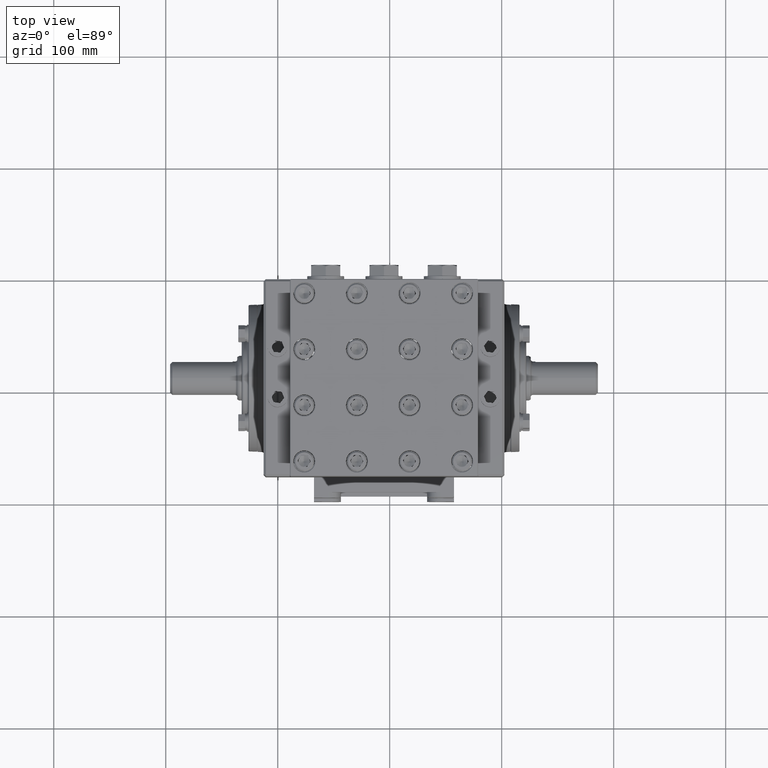
[diagram: clean part render]
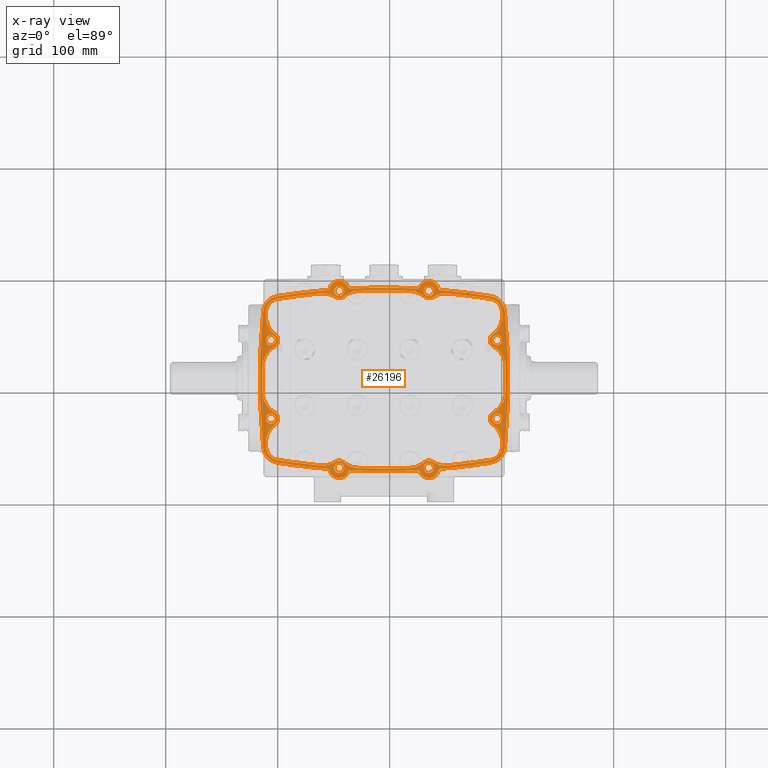
[diagram: x-ray — body ghosted, one internal face saturated and labeled with its STEP entity id]
A machine part, top view, then the same camera in x-ray: the body is ghosted and one INTERNAL B-rep face — a face not visible from any outside direction — is saturated and labeled: STEP entity #26196.
In plain terms, the highlighted planar face has unit normal (0, 0, 1).
Its self-contained STEP definition (entity closure, byte-faithful):
#60 = VERTEX_POINT ( 'NONE', #33132 ) ;
#239 = DIRECTION ( 'NONE',  ( 1.000000000000000000, 0.000000000000000000, 0.000000000000000000 ) ) ;
#281 = AXIS2_PLACEMENT_3D ( 'NONE', #66117, #52047, #17262 ) ;
#316 = CIRCLE ( 'NONE', #84127, 0.8070866141732255805 ) ;
#365 = CARTESIAN_POINT ( 'NONE',  ( 1.785424345714814232, 3.581782894422883334, -2.677165354331786151 ) ) ;
#388 = DIRECTION ( 'NONE',  ( -0.000000000000000000, -0.000000000000000000, -1.000000000000000000 ) ) ;
#419 = DIRECTION ( 'NONE',  ( 1.000000000000000000, 0.000000000000000000, 0.000000000000000000 ) ) ;
#507 = CARTESIAN_POINT ( 'NONE',  ( 2.031875159220263516, 3.460816034877502556, -2.677165354331786151 ) ) ;
#525 = AXIS2_PLACEMENT_3D ( 'NONE', #82290, #62318, #13040 ) ;
#612 = VERTEX_POINT ( 'NONE', #84361 ) ;
#622 = ORIENTED_EDGE ( 'NONE', *, *, #57316, .T. ) ;
#748 = EDGE_CURVE ( 'NONE', #10547, #16493, #12487, .T. ) ;
#881 = DIRECTION ( 'NONE',  ( 0.000000000000000000, 0.000000000000000000, 1.000000000000000000 ) ) ;
#892 = CARTESIAN_POINT ( 'NONE',  ( -1.775652658745459744, -2.673143141570590853, -2.677165354331786151 ) ) ;
#1003 = DIRECTION ( 'NONE',  ( -0.000000000000000000, -0.000000000000000000, -1.000000000000000000 ) ) ;
#1083 = DIRECTION ( 'NONE',  ( -0.000000000000000000, -0.000000000000000000, -1.000000000000000000 ) ) ;
#1476 = CARTESIAN_POINT ( 'NONE',  ( -0.2008495091391611642, -19.95660770849972465, -2.677165354331786151 ) ) ;
#1698 = DIRECTION ( 'NONE',  ( -0.000000000000000000, -0.000000000000000000, -1.000000000000000000 ) ) ;
#1706 = EDGE_CURVE ( 'NONE', #39356, #76186, #62009, .T. ) ;
#1744 = DIRECTION ( 'NONE',  ( -0.000000000000000000, 0.000000000000000000, 1.000000000000000000 ) ) ;
#1979 = DIRECTION ( 'NONE',  ( 0.000000000000000000, 0.000000000000000000, 1.000000000000000000 ) ) ;
#2002 = CARTESIAN_POINT ( 'NONE',  ( 3.153046066991902929, 2.676711634694780795, -2.677165354331786151 ) ) ;
#2188 = EDGE_CURVE ( 'NONE', #60603, #61202, #57726, .T. ) ;
#2222 = CARTESIAN_POINT ( 'NONE',  ( 3.952693797947452570, -0.9408596770036621315, -2.677165354331786151 ) ) ;
#2251 = ORIENTED_EDGE ( 'NONE', *, *, #62694, .F. ) ;
#2314 = CIRCLE ( 'NONE', #67392, 0.8070866141732228050 ) ;
#2584 = CARTESIAN_POINT ( 'NONE',  ( 3.153046066991902929, -1.802525476891080780, -2.677165354331786151 ) ) ;
#2598 = VERTEX_POINT ( 'NONE', #39488 ) ;
#2639 = CARTESIAN_POINT ( 'NONE',  ( -4.027370593448426739, 2.022483897743110770, -2.677165354331786151 ) ) ;
#2845 = ORIENTED_EDGE ( 'NONE', *, *, #34810, .T. ) ;
#2882 = CARTESIAN_POINT ( 'NONE',  ( 19.05111899479784654, 0.4370930789018498963, -2.677165354331786151 ) ) ;
#2928 = CARTESIAN_POINT ( 'NONE',  ( -2.433574177498585733, 3.460816034877502556, -2.677165354331786151 ) ) ;
#2952 = VERTEX_POINT ( 'NONE', #89502 ) ;
#3082 = CARTESIAN_POINT ( 'NONE',  ( -0.2008495091391611642, 20.83079386630342711, -2.677165354331786151 ) ) ;
#3208 = EDGE_CURVE ( 'NONE', #8627, #44251, #82527, .T. ) ;
#3267 = DIRECTION ( 'NONE',  ( 0.000000000000000000, 0.000000000000000000, 1.000000000000000000 ) ) ;
#3918 = CARTESIAN_POINT ( 'NONE',  ( -0.2008495091391611642, 20.83079386630342711, -2.677165354331786151 ) ) ;
#4266 = CARTESIAN_POINT ( 'NONE',  ( -1.775652658745459744, 3.547329299374291089, -2.677165354331786151 ) ) ;
#4549 = EDGE_LOOP ( 'NONE', ( #12685, #74538 ) ) ;
#4727 = DIRECTION ( 'NONE',  ( 1.000000000000000000, 0.000000000000000000, 0.000000000000000000 ) ) ;
#4912 = FACE_BOUND ( 'NONE', #61762, .T. ) ;
#4988 = ORIENTED_EDGE ( 'NONE', *, *, #87531, .T. ) ;
#5150 = DIRECTION ( 'NONE',  ( -1.000000000000000000, 0.000000000000000000, 0.000000000000000000 ) ) ;
#5289 = ORIENTED_EDGE ( 'NONE', *, *, #34220, .F. ) ;
#5559 = DIRECTION ( 'NONE',  ( -1.000000000000000000, 0.000000000000000000, 0.000000000000000000 ) ) ;
#5587 = CARTESIAN_POINT ( 'NONE',  ( 1.373953640467137305, -2.673143141570590853, -2.677165354331786151 ) ) ;
#5645 = ORIENTED_EDGE ( 'NONE', *, *, #45555, .T. ) ;
#5760 = VERTEX_POINT ( 'NONE', #34115 ) ;
#5784 = AXIS2_PLACEMENT_3D ( 'NONE', #45911, #18781, #73532 ) ;
#5807 = ORIENTED_EDGE ( 'NONE', *, *, #81953, .F. ) ;
#6211 = DIRECTION ( 'NONE',  ( 0.000000000000000000, 0.000000000000000000, 1.000000000000000000 ) ) ;
#6359 = EDGE_CURVE ( 'NONE', #60, #50495, #87274, .T. ) ;
#6781 = CARTESIAN_POINT ( 'NONE',  ( -0.2008495091391611642, -19.95660770849972465, -2.677165354331786151 ) ) ;
#6936 = CARTESIAN_POINT ( 'NONE',  ( 3.952693797947452570, 1.815045834807361924, -2.677165354331786151 ) ) ;
#7016 = ORIENTED_EDGE ( 'NONE', *, *, #6359, .F. ) ;
#7060 = CARTESIAN_POINT ( 'NONE',  ( -3.938871017554318232, -2.393934106790546412, -2.677165354331786151 ) ) ;
#7528 = AXIS2_PLACEMENT_3D ( 'NONE', #59001, #66265, #39571 ) ;
#7604 = DIRECTION ( 'NONE',  ( 0.000000000000000000, 0.000000000000000000, 1.000000000000000000 ) ) ;
#7808 = DIRECTION ( 'NONE',  ( -1.000000000000000000, 0.000000000000000000, 0.000000000000000000 ) ) ;
#7839 = EDGE_LOOP ( 'NONE', ( #42932, #18965 ) ) ;
#7881 = CIRCLE ( 'NONE', #68607, 0.4921259842519716821 ) ;
#7981 = CIRCLE ( 'NONE', #78766, 23.52362204724409267 ) ;
#8025 = EDGE_CURVE ( 'NONE', #59511, #69495, #27909, .T. ) ;
#8328 = AXIS2_PLACEMENT_3D ( 'NONE', #27906, #27028, #47799 ) ;
#8579 = CARTESIAN_POINT ( 'NONE',  ( -4.357899701633129119, 2.756282137976854063, -2.677165354331786151 ) ) ;
#8627 = VERTEX_POINT ( 'NONE', #33630 ) ;
#8652 = VERTEX_POINT ( 'NONE', #68005 ) ;
#8709 = EDGE_CURVE ( 'NONE', #18589, #57565, #53981, .T. ) ;
#8914 = DIRECTION ( 'NONE',  ( 1.000000000000000000, 0.000000000000000000, 0.000000000000000000 ) ) ;
#9077 = AXIS2_PLACEMENT_3D ( 'NONE', #71884, #16708, #9905 ) ;
#9384 = DIRECTION ( 'NONE',  ( -0.000000000000000000, -0.000000000000000000, -1.000000000000000000 ) ) ;
#9648 = DIRECTION ( 'NONE',  ( -1.000000000000000000, 0.000000000000000000, 0.000000000000000000 ) ) ;
#9723 = EDGE_CURVE ( 'NONE', #10505, #57132, #7881, .T. ) ;
#9831 = ORIENTED_EDGE ( 'NONE', *, *, #70588, .T. ) ;
#9834 = CIRCLE ( 'NONE', #50286, 0.3543307086614258528 ) ;
#9905 = DIRECTION ( 'NONE',  ( 1.000000000000000000, 0.000000000000000000, 0.000000000000000000 ) ) ;
#9950 = CARTESIAN_POINT ( 'NONE',  ( -0.2008495091391611642, 20.83079386630342711, -2.677165354331786151 ) ) ;
#9973 = CIRCLE ( 'NONE', #51849, 23.62204724409448531 ) ;
#9988 = DIRECTION ( 'NONE',  ( 0.000000000000000000, 0.000000000000000000, 1.000000000000000000 ) ) ;
#10087 = EDGE_CURVE ( 'NONE', #41835, #47770, #22426, .T. ) ;
#10196 = VERTEX_POINT ( 'NONE', #41651 ) ;
#10343 = FACE_BOUND ( 'NONE', #76847, .T. ) ;
#10505 = VERTEX_POINT ( 'NONE', #36190 ) ;
#10547 = VERTEX_POINT ( 'NONE', #24427 ) ;
#10602 = AXIS2_PLACEMENT_3D ( 'NONE', #31410, #30960, #51725 ) ;
#10762 = CIRCLE ( 'NONE', #61324, 0.5905511811023621549 ) ;
#10796 = DIRECTION ( 'NONE',  ( 0.000000000000000000, 0.000000000000000000, 1.000000000000000000 ) ) ;
#10843 = EDGE_CURVE ( 'NONE', #69093, #82409, #36941, .T. ) ;
#10875 = ORIENTED_EDGE ( 'NONE', *, *, #88723, .F. ) ;
#10966 = CARTESIAN_POINT ( 'NONE',  ( -4.000062107564357206, -0.9408596770036621315, -2.677165354331786151 ) ) ;
#10984 = EDGE_CURVE ( 'NONE', #80257, #21296, #34116, .T. ) ;
#11027 = CARTESIAN_POINT ( 'NONE',  ( -1.372456074976050600, 3.636366967388852345, -2.677165354331786151 ) ) ;
#11170 = AXIS2_PLACEMENT_3D ( 'NONE', #33255, #39606, #67195 ) ;
#11189 = CARTESIAN_POINT ( 'NONE',  ( -4.177227461895065552, 1.815045834807361924, -2.677165354331786151 ) ) ;
#11272 = ORIENTED_EDGE ( 'NONE', *, *, #9723, .F. ) ;
#11722 = DIRECTION ( 'NONE',  ( 0.000000000000000000, 0.000000000000000000, 1.000000000000000000 ) ) ;
#11731 = DIRECTION ( 'NONE',  ( -1.000000000000000000, 0.000000000000000000, 0.000000000000000000 ) ) ;
#11785 = CIRCLE ( 'NONE', #29082, 23.52362204724409267 ) ;
#11915 = ORIENTED_EDGE ( 'NONE', *, *, #77210, .T. ) ;
#11966 = VERTEX_POINT ( 'NONE', #7060 ) ;
#12051 = CARTESIAN_POINT ( 'NONE',  ( 0.7103715806316451831, -2.675172830413072411, -2.677165354331786151 ) ) ;
#12255 = DIRECTION ( 'NONE',  ( 1.000000000000000000, 0.000000000000000000, 0.000000000000000000 ) ) ;
#12320 = AXIS2_PLACEMENT_3D ( 'NONE', #68882, #28147, #34492 ) ;
#12476 = AXIS2_PLACEMENT_3D ( 'NONE', #19289, #67695, #46859 ) ;
#12487 = CIRCLE ( 'NONE', #38514, 0.07874015748031502893 ) ;
#12539 = CARTESIAN_POINT ( 'NONE',  ( 3.259284897187512797, -0.01164233930795106377, -2.677165354331786151 ) ) ;
#12570 = CIRCLE ( 'NONE', #84863, 0.1771653543307085410 ) ;
#12685 = ORIENTED_EDGE ( 'NONE', *, *, #85265, .T. ) ;
#12725 = CARTESIAN_POINT ( 'NONE',  ( -3.954511274911700625, 3.365294858623937291, -2.677165354331786151 ) ) ;
#12808 = ORIENTED_EDGE ( 'NONE', *, *, #68165, .T. ) ;
#12823 = DIRECTION ( 'NONE',  ( 1.000000000000000000, 0.000000000000000000, 0.000000000000000000 ) ) ;
#12892 = CARTESIAN_POINT ( 'NONE',  ( 3.598363089286034988, 1.815045834807361924, -2.677165354331786151 ) ) ;
#12897 = CARTESIAN_POINT ( 'NONE',  ( 1.047260817108147668, -2.810336619062198338, -2.677165354331786151 ) ) ;
#13040 = DIRECTION ( 'NONE',  ( -1.000000000000000000, 0.000000000000000000, 0.000000000000000000 ) ) ;
#13282 = CARTESIAN_POINT ( 'NONE',  ( -4.354392816225774787, 1.815045834807361924, -2.677165354331786151 ) ) ;
#13355 = AXIS2_PLACEMENT_3D ( 'NONE', #54034, #84350, #9648 ) ;
#13447 = CARTESIAN_POINT ( 'NONE',  ( -0.2008495091391611642, 20.83079386630342711, -2.677165354331786151 ) ) ;
#13570 = CARTESIAN_POINT ( 'NONE',  ( 3.537171999275996015, -2.393934106790546412, -2.677165354331786151 ) ) ;
#14004 = AXIS2_PLACEMENT_3D ( 'NONE', #41649, #40756, #33534 ) ;
#14133 = VERTEX_POINT ( 'NONE', #85594 ) ;
#14398 = CARTESIAN_POINT ( 'NONE',  ( 19.05111899479784654, 0.4370930789018498963, -2.677165354331786151 ) ) ;
#14402 = VERTEX_POINT ( 'NONE', #13570 ) ;
#14613 = AXIS2_PLACEMENT_3D ( 'NONE', #36544, #1698, #42449 ) ;
#14774 = ORIENTED_EDGE ( 'NONE', *, *, #39883, .T. ) ;
#14903 = ORIENTED_EDGE ( 'NONE', *, *, #78924, .F. ) ;
#15353 = CARTESIAN_POINT ( 'NONE',  ( 3.775528443616743779, 1.815045834807361924, -2.677165354331786151 ) ) ;
#15438 = DIRECTION ( 'NONE',  ( 1.000000000000000000, 0.000000000000000000, 0.000000000000000000 ) ) ;
#15461 = EDGE_CURVE ( 'NONE', #2952, #29906, #9973, .T. ) ;
#15555 = EDGE_CURVE ( 'NONE', #47770, #56272, #17277, .T. ) ;
#15765 = CIRCLE ( 'NONE', #21528, 0.8070866141732291332 ) ;
#16105 = VERTEX_POINT ( 'NONE', #65874 ) ;
#16181 = DIRECTION ( 'NONE',  ( -0.000000000000000000, -0.000000000000000000, -1.000000000000000000 ) ) ;
#16308 = CIRCLE ( 'NONE', #39452, 23.52362204724409267 ) ;
#16493 = VERTEX_POINT ( 'NONE', #39519 ) ;
#16521 = VERTEX_POINT ( 'NONE', #58506 ) ;
#16559 = DIRECTION ( 'NONE',  ( 1.000000000000000000, 0.000000000000000000, 0.000000000000000000 ) ) ;
#16612 = EDGE_CURVE ( 'NONE', #31982, #14133, #37620, .T. ) ;
#16708 = DIRECTION ( 'NONE',  ( 0.000000000000000000, 0.000000000000000000, 1.000000000000000000 ) ) ;
#16766 = DIRECTION ( 'NONE',  ( -1.000000000000000000, 0.000000000000000000, 0.000000000000000000 ) ) ;
#17023 = ORIENTED_EDGE ( 'NONE', *, *, #40165, .F. ) ;
#17262 = DIRECTION ( 'NONE',  ( 1.000000000000000000, 0.000000000000000000, 0.000000000000000000 ) ) ;
#17277 = CIRCLE ( 'NONE', #67846, 0.2559055118108424787 ) ;
#17384 = CARTESIAN_POINT ( 'NONE',  ( -4.354392816225774787, -0.9408596770036621315, -2.677165354331786151 ) ) ;
#17501 = DIRECTION ( 'NONE',  ( -0.000000000000000000, -0.000000000000000000, -1.000000000000000000 ) ) ;
#17740 = ORIENTED_EDGE ( 'NONE', *, *, #15461, .T. ) ;
#17769 = AXIS2_PLACEMENT_3D ( 'NONE', #81079, #67479, #52983 ) ;
#17770 = VERTEX_POINT ( 'NONE', #8579 ) ;
#17834 = VERTEX_POINT ( 'NONE', #59536 ) ;
#17980 = DIRECTION ( 'NONE',  ( 1.000000000000000000, 0.000000000000000000, 0.000000000000000000 ) ) ;
#17988 = DIRECTION ( 'NONE',  ( -0.000000000000000000, -0.000000000000000000, -1.000000000000000000 ) ) ;
#18041 = VERTEX_POINT ( 'NONE', #76285 ) ;
#18217 = ORIENTED_EDGE ( 'NONE', *, *, #16612, .T. ) ;
#18361 = EDGE_CURVE ( 'NONE', #21296, #60004, #23345, .T. ) ;
#18492 = FACE_BOUND ( 'NONE', #50610, .T. ) ;
#18589 = VERTEX_POINT ( 'NONE', #6936 ) ;
#18689 = CARTESIAN_POINT ( 'NONE',  ( 0.9746624119171848344, 3.715010216308480828, -2.677165354331786151 ) ) ;
#18781 = DIRECTION ( 'NONE',  ( 0.000000000000000000, 0.000000000000000000, 1.000000000000000000 ) ) ;
#18853 = CARTESIAN_POINT ( 'NONE',  ( -4.052946608125132855, 1.591345364621476799, -2.677165354331786151 ) ) ;
#18866 = AXIS2_PLACEMENT_3D ( 'NONE', #62561, #88892, #48082 ) ;
#18957 = ORIENTED_EDGE ( 'NONE', *, *, #28587, .T. ) ;
#18965 = ORIENTED_EDGE ( 'NONE', *, *, #71851, .F. ) ;
#19022 = EDGE_CURVE ( 'NONE', #87411, #23558, #57842, .T. ) ;
#19050 = EDGE_CURVE ( 'NONE', #56272, #26939, #85377, .T. ) ;
#19074 = AXIS2_PLACEMENT_3D ( 'NONE', #38355, #17988, #46450 ) ;
#19102 = VERTEX_POINT ( 'NONE', #84089 ) ;
#19260 = DIRECTION ( 'NONE',  ( 1.000000000000000000, 0.000000000000000000, 0.000000000000000000 ) ) ;
#19289 = CARTESIAN_POINT ( 'NONE',  ( -1.080806946457580242, 2.742878122471693381, -2.677165354331786151 ) ) ;
#19418 = CARTESIAN_POINT ( 'NONE',  ( -19.45281801307616831, 0.4370930789018498963, -2.677165354331786151 ) ) ;
#19506 = DIRECTION ( 'NONE',  ( 0.000000000000000000, 0.000000000000000000, 1.000000000000000000 ) ) ;
#19508 = CIRCLE ( 'NONE', #25271, 0.8070866141732273569 ) ;
#19611 = CARTESIAN_POINT ( 'NONE',  ( -4.177227461895065552, 1.815045834807361924, -2.677165354331786151 ) ) ;
#19688 = DIRECTION ( 'NONE',  ( -1.000000000000000000, 0.000000000000000000, 0.000000000000000000 ) ) ;
#19825 = EDGE_CURVE ( 'NONE', #70128, #83387, #84066, .T. ) ;
#20204 = VERTEX_POINT ( 'NONE', #72271 ) ;
#20328 = EDGE_CURVE ( 'NONE', #61361, #17834, #84130, .T. ) ;
#20437 = ORIENTED_EDGE ( 'NONE', *, *, #42046, .F. ) ;
#20499 = ORIENTED_EDGE ( 'NONE', *, *, #18361, .F. ) ;
#20984 = DIRECTION ( 'NONE',  ( -0.000000000000000000, 0.000000000000000000, 1.000000000000000000 ) ) ;
#21257 = DIRECTION ( 'NONE',  ( -1.000000000000000000, 0.000000000000000000, 0.000000000000000000 ) ) ;
#21296 = VERTEX_POINT ( 'NONE', #31773 ) ;
#21528 = AXIS2_PLACEMENT_3D ( 'NONE', #62337, #7604, #56413 ) ;
#21621 = CARTESIAN_POINT ( 'NONE',  ( 0.6791079281792580247, 2.742878122471693381, -2.677165354331786151 ) ) ;
#21650 = DIRECTION ( 'NONE',  ( -1.000000000000000000, 0.000000000000000000, 0.000000000000000000 ) ) ;
#21908 = DIRECTION ( 'NONE',  ( 1.000000000000000000, 0.000000000000000000, 0.000000000000000000 ) ) ;
#21915 = EDGE_CURVE ( 'NONE', #612, #41835, #78484, .T. ) ;
#22069 = CIRCLE ( 'NONE', #13355, 0.5905511811023621549 ) ;
#22413 = DIRECTION ( 'NONE',  ( -0.000000000000000000, -0.000000000000000000, -1.000000000000000000 ) ) ;
#22426 = CIRCLE ( 'NONE', #38311, 0.8070866141732285781 ) ;
#22476 = VERTEX_POINT ( 'NONE', #26891 ) ;
#22610 = EDGE_CURVE ( 'NONE', #76606, #76899, #84383, .T. ) ;
#22750 = CIRCLE ( 'NONE', #8328, 0.1771653543307088186 ) ;
#22785 = CIRCLE ( 'NONE', #55960, 23.52362204724408201 ) ;
#23001 = CIRCLE ( 'NONE', #80826, 0.5905511811023621549 ) ;
#23130 = DIRECTION ( 'NONE',  ( 1.000000000000000000, 0.000000000000000000, 0.000000000000000000 ) ) ;
#23328 = CARTESIAN_POINT ( 'NONE',  ( 3.651247589846810193, 1.591345364621476799, -2.677165354331786151 ) ) ;
#23345 = CIRCLE ( 'NONE', #66740, 0.2559055118111664417 ) ;
#23348 = DIRECTION ( 'NONE',  ( -0.000000000000000000, -0.000000000000000000, -1.000000000000000000 ) ) ;
#23406 = CARTESIAN_POINT ( 'NONE',  ( -0.2008495091391611642, -19.95660770849972465, -2.677165354331786151 ) ) ;
#23416 = CIRCLE ( 'NONE', #7528, 23.62204724409448531 ) ;
#23452 = VERTEX_POINT ( 'NONE', #87935 ) ;
#23501 = CARTESIAN_POINT ( 'NONE',  ( 1.551118994797845874, -2.673143141570590853, -2.677165354331786151 ) ) ;
#23558 = VERTEX_POINT ( 'NONE', #507 ) ;
#23724 = DIRECTION ( 'NONE',  ( 1.000000000000000000, 0.000000000000000000, 0.000000000000000000 ) ) ;
#23761 = AXIS2_PLACEMENT_3D ( 'NONE', #86054, #9988, #38496 ) ;
#23887 = ORIENTED_EDGE ( 'NONE', *, *, #68315, .F. ) ;
#24017 = VERTEX_POINT ( 'NONE', #42254 ) ;
#24302 = CARTESIAN_POINT ( 'NONE',  ( 1.373953640467137305, 3.547329299374291089, -2.677165354331786151 ) ) ;
#24368 = DIRECTION ( 'NONE',  ( 0.000000000000000000, 0.000000000000000000, 1.000000000000000000 ) ) ;
#24427 = CARTESIAN_POINT ( 'NONE',  ( 0.9707570566977284932, 3.636366967388852345, -2.677165354331786151 ) ) ;
#24521 = CARTESIAN_POINT ( 'NONE',  ( -3.860669730767379626, 2.782247294445845398, -2.677165354331786151 ) ) ;
#24621 = VERTEX_POINT ( 'NONE', #86963 ) ;
#24824 = DIRECTION ( 'NONE',  ( -0.000000000000000000, -0.000000000000000000, -1.000000000000000000 ) ) ;
#24844 = FACE_BOUND ( 'NONE', #7839, .T. ) ;
#24860 = CIRCLE ( 'NONE', #281, 0.07874015748031502893 ) ;
#24894 = AXIS2_PLACEMENT_3D ( 'NONE', #40027, #38231, #79411 ) ;
#25177 = CARTESIAN_POINT ( 'NONE',  ( -1.080806946457580242, -1.868691964667993366, -2.677165354331786151 ) ) ;
#25271 = AXIS2_PLACEMENT_3D ( 'NONE', #25177, #32848, #19260 ) ;
#25289 = FACE_BOUND ( 'NONE', #77318, .T. ) ;
#25420 = CARTESIAN_POINT ( 'NONE',  ( -2.356970234902155070, 2.657373044518958061, -2.677165354331786151 ) ) ;
#25558 = CARTESIAN_POINT ( 'NONE',  ( -19.45281801307616831, 0.4370930789018498963, -2.677165354331786151 ) ) ;
#25794 = CIRCLE ( 'NONE', #80704, 0.2559055118111683846 ) ;
#25832 = CARTESIAN_POINT ( 'NONE',  ( 3.458970712489064958, -1.908061136642145605, -2.677165354331786151 ) ) ;
#25834 = ORIENTED_EDGE ( 'NONE', *, *, #54292, .T. ) ;
#25844 = ORIENTED_EDGE ( 'NONE', *, *, #34496, .F. ) ;
#25849 = CIRCLE ( 'NONE', #37408, 0.8070866141732279120 ) ;
#26047 = VERTEX_POINT ( 'NONE', #71879 ) ;
#26107 = DIRECTION ( 'NONE',  ( -0.000000000000000000, -0.000000000000000000, -1.000000000000000000 ) ) ;
#26196 = ADVANCED_FACE ( 'NONE', ( #86865, #65537, #24844, #25289, #18492, #4912, #86419, #73239, #10343, #38414 ), #39300, .T. ) ;
#26338 = ORIENTED_EDGE ( 'NONE', *, *, #57166, .F. ) ;
#26348 = VERTEX_POINT ( 'NONE', #23501 ) ;
#26377 = DIRECTION ( 'NONE',  ( 0.000000000000000000, 0.000000000000000000, 1.000000000000000000 ) ) ;
#26891 = CARTESIAN_POINT ( 'NONE',  ( -4.467913048326146885, 0.9017714365801094978, -2.677165354331786151 ) ) ;
#26937 = AXIS2_PLACEMENT_3D ( 'NONE', #34916, #56124, #15438 ) ;
#26939 = VERTEX_POINT ( 'NONE', #74979 ) ;
#27028 = DIRECTION ( 'NONE',  ( 0.000000000000000000, 0.000000000000000000, 1.000000000000000000 ) ) ;
#27130 = ORIENTED_EDGE ( 'NONE', *, *, #21915, .T. ) ;
#27132 = VERTEX_POINT ( 'NONE', #72617 ) ;
#27138 = ORIENTED_EDGE ( 'NONE', *, *, #70898, .T. ) ;
#27162 = CARTESIAN_POINT ( 'NONE',  ( -3.554745085270225591, 2.676711634694780795, -2.677165354331786151 ) ) ;
#27170 = DIRECTION ( 'NONE',  ( 1.000000000000000000, 0.000000000000000000, 0.000000000000000000 ) ) ;
#27224 = ORIENTED_EDGE ( 'NONE', *, *, #64597, .F. ) ;
#27339 = ORIENTED_EDGE ( 'NONE', *, *, #2188, .F. ) ;
#27457 = ORIENTED_EDGE ( 'NONE', *, *, #10843, .T. ) ;
#27750 = EDGE_CURVE ( 'NONE', #55666, #22476, #51429, .T. ) ;
#27762 = ORIENTED_EDGE ( 'NONE', *, *, #44491, .T. ) ;
#27906 = CARTESIAN_POINT ( 'NONE',  ( -4.177227461895065552, -0.9408596770036621315, -2.677165354331786151 ) ) ;
#27909 = CIRCLE ( 'NONE', #43771, 0.07874015748031502893 ) ;
#28022 = AXIS2_PLACEMENT_3D ( 'NONE', #25420, #19506, #33528 ) ;
#28087 = AXIS2_PLACEMENT_3D ( 'NONE', #60553, #53312, #239 ) ;
#28092 = DIRECTION ( 'NONE',  ( -0.000000000000000000, -0.000000000000000000, -1.000000000000000000 ) ) ;
#28147 = DIRECTION ( 'NONE',  ( -0.000000000000000000, -0.000000000000000000, -1.000000000000000000 ) ) ;
#28382 = CARTESIAN_POINT ( 'NONE',  ( -1.608374987268675671, -2.479478969353215767, -2.677165354331786151 ) ) ;
#28587 = EDGE_CURVE ( 'NONE', #49261, #24017, #48687, .T. ) ;
#28593 = ORIENTED_EDGE ( 'NONE', *, *, #8709, .T. ) ;
#29082 = AXIS2_PLACEMENT_3D ( 'NONE', #13447, #6211, #41036 ) ;
#29422 = DIRECTION ( 'NONE',  ( 1.000000000000000000, 0.000000000000000000, 0.000000000000000000 ) ) ;
#29441 = AXIS2_PLACEMENT_3D ( 'NONE', #69344, #1003, #7808 ) ;
#29673 = ORIENTED_EDGE ( 'NONE', *, *, #31819, .T. ) ;
#29821 = CARTESIAN_POINT ( 'NONE',  ( -2.193744276842572116, -2.786058038628932643, -2.677165354331786151 ) ) ;
#29906 = VERTEX_POINT ( 'NONE', #12725 ) ;
#30321 = ORIENTED_EDGE ( 'NONE', *, *, #84594, .T. ) ;
#30482 = AXIS2_PLACEMENT_3D ( 'NONE', #1476, #3267, #37681 ) ;
#30484 = ORIENTED_EDGE ( 'NONE', *, *, #10087, .T. ) ;
#30568 = CARTESIAN_POINT ( 'NONE',  ( -1.372456074976128315, -2.762180809585147667, -2.677165354331786151 ) ) ;
#30645 = CIRCLE ( 'NONE', #39309, 23.52362204724408201 ) ;
#30648 = CARTESIAN_POINT ( 'NONE',  ( 3.259284897187512797, 0.8858284971116507922, -2.677165354331786151 ) ) ;
#30960 = DIRECTION ( 'NONE',  ( -0.000000000000000000, -0.000000000000000000, -1.000000000000000000 ) ) ;
#31111 = ORIENTED_EDGE ( 'NONE', *, *, #50196, .F. ) ;
#31355 = CIRCLE ( 'NONE', #14004, 0.3543307086614258528 ) ;
#31403 = DIRECTION ( 'NONE',  ( -0.000000000000000000, 0.000000000000000000, 1.000000000000000000 ) ) ;
#31410 = CARTESIAN_POINT ( 'NONE',  ( -1.775652658745459744, -2.673143141570590853, -2.677165354331786151 ) ) ;
#31600 = CIRCLE ( 'NONE', #53212, 0.1771653543307088186 ) ;
#31710 = EDGE_CURVE ( 'NONE', #26047, #35282, #45009, .T. ) ;
#31773 = CARTESIAN_POINT ( 'NONE',  ( -1.608374987268677669, 3.353665127156916892, -2.677165354331786151 ) ) ;
#31819 = EDGE_CURVE ( 'NONE', #36308, #65353, #316, .T. ) ;
#31982 = VERTEX_POINT ( 'NONE', #40567 ) ;
#32036 = CIRCLE ( 'NONE', #34883, 23.52362204724408201 ) ;
#32054 = AXIS2_PLACEMENT_3D ( 'NONE', #50087, #36998, #44654 ) ;
#32256 = EDGE_CURVE ( 'NONE', #22476, #19102, #52284, .T. ) ;
#32762 = CIRCLE ( 'NONE', #71739, 0.4921259842519656869 ) ;
#32820 = AXIS2_PLACEMENT_3D ( 'NONE', #71061, #49364, #85601 ) ;
#32848 = DIRECTION ( 'NONE',  ( 0.000000000000000000, 0.000000000000000000, 1.000000000000000000 ) ) ;
#32915 = DIRECTION ( 'NONE',  ( 1.000000000000000000, 0.000000000000000000, 0.000000000000000000 ) ) ;
#33132 = CARTESIAN_POINT ( 'NONE',  ( -1.915599482635094608, -2.458894413549770341, -2.677165354331786151 ) ) ;
#33237 = EDGE_CURVE ( 'NONE', #16493, #60603, #56792, .T. ) ;
#33255 = CARTESIAN_POINT ( 'NONE',  ( 0.6791079281792580247, -1.868691964667993366, -2.677165354331786151 ) ) ;
#33494 = CARTESIAN_POINT ( 'NONE',  ( -3.660983915465835015, -0.01164233930795106377, -2.677165354331786151 ) ) ;
#33528 = DIRECTION ( 'NONE',  ( 1.000000000000000000, 0.000000000000000000, 0.000000000000000000 ) ) ;
#33534 = DIRECTION ( 'NONE',  ( -1.000000000000000000, 0.000000000000000000, 0.000000000000000000 ) ) ;
#33630 = CARTESIAN_POINT ( 'NONE',  ( -1.952818013076168091, 3.547329299374291089, -2.677165354331786151 ) ) ;
#33695 = ORIENTED_EDGE ( 'NONE', *, *, #39162, .T. ) ;
#34115 = CARTESIAN_POINT ( 'NONE',  ( 3.537171999275987577, 3.268120264594258639, -2.677165354331786151 ) ) ;
#34116 = CIRCLE ( 'NONE', #12476, 0.8070866141732279120 ) ;
#34174 = EDGE_LOOP ( 'NONE', ( #34197, #77448, #4988, #18217, #622, #17740, #78527, #50477, #49552, #11915, #65991, #63927, #68560, #30321, #62961, #70690, #41027, #25844, #88124, #81680, #5289, #48360, #27339, #61208 ) ) ;
#34197 = ORIENTED_EDGE ( 'NONE', *, *, #748, .F. ) ;
#34220 = EDGE_CURVE ( 'NONE', #44231, #61361, #82968, .T. ) ;
#34492 = DIRECTION ( 'NONE',  ( -1.000000000000000000, 0.000000000000000000, 0.000000000000000000 ) ) ;
#34496 = EDGE_CURVE ( 'NONE', #16521, #26047, #39611, .T. ) ;
#34810 = EDGE_CURVE ( 'NONE', #82409, #69093, #64177, .T. ) ;
#34883 = AXIS2_PLACEMENT_3D ( 'NONE', #72944, #38571, #66601 ) ;
#34886 = DIRECTION ( 'NONE',  ( 1.000000000000000000, 0.000000000000000000, 0.000000000000000000 ) ) ;
#34901 = AXIS2_PLACEMENT_3D ( 'NONE', #37120, #77841, #29422 ) ;
#34916 = CARTESIAN_POINT ( 'NONE',  ( -3.660983915465835015, 0.8858284971116507922, -2.677165354331786151 ) ) ;
#35219 = DIRECTION ( 'NONE',  ( -1.000000000000000000, 0.000000000000000000, 0.000000000000000000 ) ) ;
#35282 = VERTEX_POINT ( 'NONE', #46223 ) ;
#35325 = CARTESIAN_POINT ( 'NONE',  ( -4.177227461895065552, 1.815045834807361924, -2.677165354331786151 ) ) ;
#35333 = VERTEX_POINT ( 'NONE', #10966 ) ;
#36190 = CARTESIAN_POINT ( 'NONE',  ( -3.938871017554309795, 3.268120264594258639, -2.677165354331786151 ) ) ;
#36221 = CIRCLE ( 'NONE', #30482, 23.52362204724409622 ) ;
#36308 = VERTEX_POINT ( 'NONE', #87425 ) ;
#36456 = EDGE_CURVE ( 'NONE', #17770, #50291, #54101, .T. ) ;
#36544 = CARTESIAN_POINT ( 'NONE',  ( 3.775528443616743779, 1.815045834807361924, -2.677165354331786151 ) ) ;
#36859 = CIRCLE ( 'NONE', #12320, 0.1771653543307086798 ) ;
#36915 = CARTESIAN_POINT ( 'NONE',  ( -2.193744276842649832, 3.660244196432625330, -2.677165354331786151 ) ) ;
#36941 = CIRCLE ( 'NONE', #87588, 0.1771653543307086798 ) ;
#36955 = ORIENTED_EDGE ( 'NONE', *, *, #69688, .T. ) ;
#36998 = DIRECTION ( 'NONE',  ( 0.000000000000000000, 0.000000000000000000, 1.000000000000000000 ) ) ;
#37080 = EDGE_CURVE ( 'NONE', #50495, #18041, #19508, .T. ) ;
#37120 = CARTESIAN_POINT ( 'NONE',  ( -1.775652658745459744, -2.673143141570590853, -2.677165354331786151 ) ) ;
#37377 = DIRECTION ( 'NONE',  ( 0.000000000000000000, 0.000000000000000000, 1.000000000000000000 ) ) ;
#37387 = CIRCLE ( 'NONE', #74994, 23.52362204724409267 ) ;
#37408 = AXIS2_PLACEMENT_3D ( 'NONE', #21621, #76821, #63209 ) ;
#37486 = AXIS2_PLACEMENT_3D ( 'NONE', #74545, #80447, #32915 ) ;
#37500 = DIRECTION ( 'NONE',  ( -1.000000000000000000, 0.000000000000000000, 0.000000000000000000 ) ) ;
#37561 = DIRECTION ( 'NONE',  ( -0.000000000000000000, -0.000000000000000000, -1.000000000000000000 ) ) ;
#37620 = CIRCLE ( 'NONE', #88247, 0.3543307086614990720 ) ;
#37678 = AXIS2_PLACEMENT_3D ( 'NONE', #30648, #9384, #50523 ) ;
#37681 = DIRECTION ( 'NONE',  ( 1.000000000000000000, 0.000000000000000000, 0.000000000000000000 ) ) ;
#38032 = VERTEX_POINT ( 'NONE', #13282 ) ;
#38078 = DIRECTION ( 'NONE',  ( 0.000000000000000000, 0.000000000000000000, 1.000000000000000000 ) ) ;
#38231 = DIRECTION ( 'NONE',  ( 0.000000000000000000, 0.000000000000000000, 1.000000000000000000 ) ) ;
#38311 = AXIS2_PLACEMENT_3D ( 'NONE', #2002, #22413, #77606 ) ;
#38355 = CARTESIAN_POINT ( 'NONE',  ( -19.45281801307616831, 0.4370930789018498963, -2.677165354331786151 ) ) ;
#38414 = FACE_BOUND ( 'NONE', #61819, .T. ) ;
#38496 = DIRECTION ( 'NONE',  ( -1.000000000000000000, 0.000000000000000000, 0.000000000000000000 ) ) ;
#38514 = AXIS2_PLACEMENT_3D ( 'NONE', #18689, #79337, #44924 ) ;
#38571 = DIRECTION ( 'NONE',  ( 0.000000000000000000, 0.000000000000000000, 1.000000000000000000 ) ) ;
#38626 = CIRCLE ( 'NONE', #11170, 0.8070866141732273569 ) ;
#38717 = AXIS2_PLACEMENT_3D ( 'NONE', #40015, #88908, #4727 ) ;
#38850 = VERTEX_POINT ( 'NONE', #47239 ) ;
#38910 = ORIENTED_EDGE ( 'NONE', *, *, #36456, .F. ) ;
#38966 = DIRECTION ( 'NONE',  ( -0.000000000000000000, -0.000000000000000000, -1.000000000000000000 ) ) ;
#39162 = EDGE_CURVE ( 'NONE', #38850, #14402, #32762, .T. ) ;
#39300 = PLANE ( 'NONE',  #52747 ) ;
#39309 = AXIS2_PLACEMENT_3D ( 'NONE', #25558, #45441, #53111 ) ;
#39356 = VERTEX_POINT ( 'NONE', #65166 ) ;
#39452 = AXIS2_PLACEMENT_3D ( 'NONE', #23406, #45084, #8914 ) ;
#39487 = AXIS2_PLACEMENT_3D ( 'NONE', #63668, #62799, #35219 ) ;
#39488 = CARTESIAN_POINT ( 'NONE',  ( 3.625671575170103189, -1.148297739939410089, -2.677165354331786151 ) ) ;
#39519 = CARTESIAN_POINT ( 'NONE',  ( 1.047260817108071507, 3.684522776865906124, -2.677165354331786151 ) ) ;
#39554 = DIRECTION ( 'NONE',  ( -0.000000000000000000, -0.000000000000000000, -1.000000000000000000 ) ) ;
#39571 = DIRECTION ( 'NONE',  ( -1.000000000000000000, 0.000000000000000000, 0.000000000000000000 ) ) ;
#39606 = DIRECTION ( 'NONE',  ( -0.000000000000000000, -0.000000000000000000, -1.000000000000000000 ) ) ;
#39611 = CIRCLE ( 'NONE', #42492, 23.62204724409448531 ) ;
#39654 = DIRECTION ( 'NONE',  ( -1.000000000000000000, 0.000000000000000000, 0.000000000000000000 ) ) ;
#39691 = ORIENTED_EDGE ( 'NONE', *, *, #87735, .F. ) ;
#39883 = EDGE_CURVE ( 'NONE', #23452, #42384, #38626, .T. ) ;
#39968 = CARTESIAN_POINT ( 'NONE',  ( -1.775652658745459744, 3.547329299374291089, -2.677165354331786151 ) ) ;
#40015 = CARTESIAN_POINT ( 'NONE',  ( 19.05111899479784654, 0.4370930789018498963, -2.677165354331786151 ) ) ;
#40027 = CARTESIAN_POINT ( 'NONE',  ( 19.05111899479784654, 0.4370930789018498963, -2.677165354331786151 ) ) ;
#40049 = ORIENTED_EDGE ( 'NONE', *, *, #32256, .F. ) ;
#40113 = CIRCLE ( 'NONE', #54551, 0.4921259842519656869 ) ;
#40165 = EDGE_CURVE ( 'NONE', #10196, #11966, #40113, .T. ) ;
#40481 = EDGE_CURVE ( 'NONE', #14402, #24621, #22785, .T. ) ;
#40561 = CIRCLE ( 'NONE', #18866, 0.4921259842519716821 ) ;
#40567 = CARTESIAN_POINT ( 'NONE',  ( -1.448959835386393724, 3.684522776865906124, -2.677165354331786151 ) ) ;
#40722 = CARTESIAN_POINT ( 'NONE',  ( -1.598487304414751176, 3.547329299374291089, -2.677165354331786151 ) ) ;
#40756 = DIRECTION ( 'NONE',  ( -0.000000000000000000, -0.000000000000000000, -1.000000000000000000 ) ) ;
#41027 = ORIENTED_EDGE ( 'NONE', *, *, #31710, .F. ) ;
#41036 = DIRECTION ( 'NONE',  ( 1.000000000000000000, 0.000000000000000000, 0.000000000000000000 ) ) ;
#41233 = CARTESIAN_POINT ( 'NONE',  ( 3.458970712489064958, 2.782247294445845398, -2.677165354331786151 ) ) ;
#41289 = CIRCLE ( 'NONE', #51384, 0.8070866141732258026 ) ;
#41432 = CARTESIAN_POINT ( 'NONE',  ( 1.551118994797845874, 3.547329299374291089, -2.677165354331786151 ) ) ;
#41576 = ORIENTED_EDGE ( 'NONE', *, *, #50907, .F. ) ;
#41649 = CARTESIAN_POINT ( 'NONE',  ( 1.373953640467137305, -2.673143141570590853, -2.677165354331786151 ) ) ;
#41651 = CARTESIAN_POINT ( 'NONE',  ( -4.350237865929031500, -1.958171269452897212, -2.677165354331786151 ) ) ;
#41835 = VERTEX_POINT ( 'NONE', #51051 ) ;
#41973 = DIRECTION ( 'NONE',  ( 0.000000000000000000, 0.000000000000000000, 1.000000000000000000 ) ) ;
#42046 = EDGE_CURVE ( 'NONE', #57132, #17770, #37387, .T. ) ;
#42051 = DIRECTION ( 'NONE',  ( 1.000000000000000000, 0.000000000000000000, 0.000000000000000000 ) ) ;
#42213 = CARTESIAN_POINT ( 'NONE',  ( 1.196788286136428514, -2.673143141570590853, -2.677165354331786151 ) ) ;
#42254 = CARTESIAN_POINT ( 'NONE',  ( 3.598363089286034988, -0.9408596770036621315, -2.677165354331786151 ) ) ;
#42384 = VERTEX_POINT ( 'NONE', #12051 ) ;
#42398 = CIRCLE ( 'NONE', #59695, 23.52362204724409267 ) ;
#42449 = DIRECTION ( 'NONE',  ( -1.000000000000000000, 0.000000000000000000, 0.000000000000000000 ) ) ;
#42492 = AXIS2_PLACEMENT_3D ( 'NONE', #9950, #37561, #65135 ) ;
#42930 = DIRECTION ( 'NONE',  ( -0.000000000000000000, 0.000000000000000000, 1.000000000000000000 ) ) ;
#42932 = ORIENTED_EDGE ( 'NONE', *, *, #80707, .F. ) ;
#43314 = DIRECTION ( 'NONE',  ( -0.000000000000000000, -0.000000000000000000, -1.000000000000000000 ) ) ;
#43328 = EDGE_CURVE ( 'NONE', #26939, #36308, #30645, .T. ) ;
#43398 = EDGE_CURVE ( 'NONE', #61202, #44231, #23416, .T. ) ;
#43771 = AXIS2_PLACEMENT_3D ( 'NONE', #29821, #71431, #70532 ) ;
#44032 = DIRECTION ( 'NONE',  ( 0.000000000000000000, 0.000000000000000000, 1.000000000000000000 ) ) ;
#44231 = VERTEX_POINT ( 'NONE', #65643 ) ;
#44251 = VERTEX_POINT ( 'NONE', #40722 ) ;
#44491 = EDGE_CURVE ( 'NONE', #65353, #2598, #52378, .T. ) ;
#44654 = DIRECTION ( 'NONE',  ( -1.000000000000000000, 0.000000000000000000, 0.000000000000000000 ) ) ;
#44656 = VERTEX_POINT ( 'NONE', #57822 ) ;
#44713 = ORIENTED_EDGE ( 'NONE', *, *, #19022, .T. ) ;
#44804 = ORIENTED_EDGE ( 'NONE', *, *, #77547, .T. ) ;
#44924 = DIRECTION ( 'NONE',  ( -1.000000000000000000, 0.000000000000000000, 0.000000000000000000 ) ) ;
#45009 = CIRCLE ( 'NONE', #32054, 0.07874015748031502893 ) ;
#45036 = AXIS2_PLACEMENT_3D ( 'NONE', #892, #82391, #27170 ) ;
#45084 = DIRECTION ( 'NONE',  ( 0.000000000000000000, 0.000000000000000000, 1.000000000000000000 ) ) ;
#45199 = DIRECTION ( 'NONE',  ( 1.000000000000000000, 0.000000000000000000, 0.000000000000000000 ) ) ;
#45432 = CIRCLE ( 'NONE', #74323, 0.2559055118108424787 ) ;
#45441 = DIRECTION ( 'NONE',  ( -0.000000000000000000, -0.000000000000000000, -1.000000000000000000 ) ) ;
#45555 = EDGE_CURVE ( 'NONE', #24017, #49261, #55429, .T. ) ;
#45911 = CARTESIAN_POINT ( 'NONE',  ( 1.792045258564327614, 3.660244196432625330, -2.677165354331786151 ) ) ;
#46100 = DIRECTION ( 'NONE',  ( -0.000000000000000000, -0.000000000000000000, -1.000000000000000000 ) ) ;
#46171 = AXIS2_PLACEMENT_3D ( 'NONE', #35325, #28092, #34886 ) ;
#46223 = CARTESIAN_POINT ( 'NONE',  ( 1.716028600728412457, -2.765528057345597812, -2.677165354331786151 ) ) ;
#46324 = ORIENTED_EDGE ( 'NONE', *, *, #69585, .T. ) ;
#46450 = DIRECTION ( 'NONE',  ( -1.000000000000000000, 0.000000000000000000, 0.000000000000000000 ) ) ;
#46596 = EDGE_CURVE ( 'NONE', #26348, #78661, #82988, .T. ) ;
#46659 = CIRCLE ( 'NONE', #9077, 0.1771653543307088186 ) ;
#46859 = DIRECTION ( 'NONE',  ( 1.000000000000000000, 0.000000000000000000, 0.000000000000000000 ) ) ;
#47239 = CARTESIAN_POINT ( 'NONE',  ( 3.948538847650708838, -1.958171269452897212, -2.677165354331786151 ) ) ;
#47368 = VERTEX_POINT ( 'NONE', #11027 ) ;
#47579 = CIRCLE ( 'NONE', #63468, 23.52362204724408201 ) ;
#47770 = VERTEX_POINT ( 'NONE', #72448 ) ;
#47788 = AXIS2_PLACEMENT_3D ( 'NONE', #84355, #44032, #21908 ) ;
#47799 = DIRECTION ( 'NONE',  ( 1.000000000000000000, 0.000000000000000000, 0.000000000000000000 ) ) ;
#48082 = DIRECTION ( 'NONE',  ( -1.000000000000000000, 0.000000000000000000, 0.000000000000000000 ) ) ;
#48323 = VERTEX_POINT ( 'NONE', #62215 ) ;
#48360 = ORIENTED_EDGE ( 'NONE', *, *, #43398, .F. ) ;
#48477 = VERTEX_POINT ( 'NONE', #17384 ) ;
#48626 = CARTESIAN_POINT ( 'NONE',  ( -2.356970234902155070, -1.783186886715258268, -2.677165354331786151 ) ) ;
#48687 = CIRCLE ( 'NONE', #32820, 0.1771653543307088186 ) ;
#48805 = DIRECTION ( 'NONE',  ( -1.000000000000000000, 0.000000000000000000, 0.000000000000000000 ) ) ;
#49141 = CARTESIAN_POINT ( 'NONE',  ( -4.350237865929030612, 2.832357427256614102, -2.677165354331786151 ) ) ;
#49261 = VERTEX_POINT ( 'NONE', #2222 ) ;
#49364 = DIRECTION ( 'NONE',  ( -0.000000000000000000, -0.000000000000000000, -1.000000000000000000 ) ) ;
#49552 = ORIENTED_EDGE ( 'NONE', *, *, #57605, .T. ) ;
#49642 = AXIS2_PLACEMENT_3D ( 'NONE', #78742, #57885, #16766 ) ;
#49840 = ORIENTED_EDGE ( 'NONE', *, *, #70735, .F. ) ;
#50087 = CARTESIAN_POINT ( 'NONE',  ( 1.792045258564249677, -2.786058038628932643, -2.677165354331786151 ) ) ;
#50196 = EDGE_CURVE ( 'NONE', #19102, #20204, #41289, .T. ) ;
#50286 = AXIS2_PLACEMENT_3D ( 'NONE', #57247, #37377, #77657 ) ;
#50291 = VERTEX_POINT ( 'NONE', #2639 ) ;
#50477 = ORIENTED_EDGE ( 'NONE', *, *, #65465, .T. ) ;
#50495 = VERTEX_POINT ( 'NONE', #28382 ) ;
#50523 = DIRECTION ( 'NONE',  ( -1.000000000000000000, 0.000000000000000000, 0.000000000000000000 ) ) ;
#50610 = EDGE_LOOP ( 'NONE', ( #27224, #69845 ) ) ;
#50907 = EDGE_CURVE ( 'NONE', #61316, #60, #2314, .T. ) ;
#51051 = CARTESIAN_POINT ( 'NONE',  ( 3.956200683354806902, 2.756282137976854063, -2.677165354331786151 ) ) ;
#51384 = AXIS2_PLACEMENT_3D ( 'NONE', #33494, #89629, #419 ) ;
#51429 = CIRCLE ( 'NONE', #26937, 0.8070866141732274679 ) ;
#51725 = DIRECTION ( 'NONE',  ( 1.000000000000000000, 0.000000000000000000, 0.000000000000000000 ) ) ;
#51849 = AXIS2_PLACEMENT_3D ( 'NONE', #6781, #82370, #76901 ) ;
#51968 = CARTESIAN_POINT ( 'NONE',  ( -1.775652658745459744, 3.547329299374291089, -2.677165354331786151 ) ) ;
#52047 = DIRECTION ( 'NONE',  ( -0.000000000000000000, -0.000000000000000000, -1.000000000000000000 ) ) ;
#52284 = CIRCLE ( 'NONE', #24894, 23.52362204724408201 ) ;
#52378 = CIRCLE ( 'NONE', #77033, 0.2559055118108424787 ) ;
#52747 = AXIS2_PLACEMENT_3D ( 'NONE', #74132, #10796, #73685 ) ;
#52786 = DIRECTION ( 'NONE',  ( -1.000000000000000000, 0.000000000000000000, 0.000000000000000000 ) ) ;
#52805 = ORIENTED_EDGE ( 'NONE', *, *, #43328, .T. ) ;
#52825 = DIRECTION ( 'NONE',  ( 1.000000000000000000, 0.000000000000000000, 0.000000000000000000 ) ) ;
#52983 = DIRECTION ( 'NONE',  ( -1.000000000000000000, 0.000000000000000000, 0.000000000000000000 ) ) ;
#53111 = DIRECTION ( 'NONE',  ( -1.000000000000000000, 0.000000000000000000, 0.000000000000000000 ) ) ;
#53212 = AXIS2_PLACEMENT_3D ( 'NONE', #19611, #74819, #12823 ) ;
#53225 = DIRECTION ( 'NONE',  ( 0.000000000000000000, 0.000000000000000000, 1.000000000000000000 ) ) ;
#53312 = DIRECTION ( 'NONE',  ( 0.000000000000000000, 0.000000000000000000, 1.000000000000000000 ) ) ;
#53532 = AXIS2_PLACEMENT_3D ( 'NONE', #82994, #20984, #82548 ) ;
#53950 = EDGE_CURVE ( 'NONE', #17834, #16521, #23001, .T. ) ;
#53981 = CIRCLE ( 'NONE', #29441, 0.1771653543307088186 ) ;
#54034 = CARTESIAN_POINT ( 'NONE',  ( -3.860669730767387176, -1.908061136642145605, -2.677165354331786151 ) ) ;
#54101 = CIRCLE ( 'NONE', #58420, 0.8070866141732285781 ) ;
#54292 = EDGE_CURVE ( 'NONE', #64171, #82581, #25849, .T. ) ;
#54500 = CARTESIAN_POINT ( 'NONE',  ( 1.373953640467137305, -2.673143141570590853, -2.677165354331786151 ) ) ;
#54551 = AXIS2_PLACEMENT_3D ( 'NONE', #63818, #77872, #23130 ) ;
#55366 = ORIENTED_EDGE ( 'NONE', *, *, #10984, .F. ) ;
#55429 = CIRCLE ( 'NONE', #525, 0.1771653543307088186 ) ;
#55666 = VERTEX_POINT ( 'NONE', #18853 ) ;
#55736 = CARTESIAN_POINT ( 'NONE',  ( 1.513900464356771280, 3.333080571353472799, -2.677165354331786151 ) ) ;
#55960 = AXIS2_PLACEMENT_3D ( 'NONE', #3082, #24824, #78210 ) ;
#56124 = DIRECTION ( 'NONE',  ( 0.000000000000000000, 0.000000000000000000, 1.000000000000000000 ) ) ;
#56272 = VERTEX_POINT ( 'NONE', #23328 ) ;
#56413 = DIRECTION ( 'NONE',  ( 1.000000000000000000, 0.000000000000000000, 0.000000000000000000 ) ) ;
#56757 = CARTESIAN_POINT ( 'NONE',  ( -1.952818013076168091, -2.673143141570590853, -2.677165354331786151 ) ) ;
#56792 = CIRCLE ( 'NONE', #17769, 0.3543307086614990720 ) ;
#56885 = CIRCLE ( 'NONE', #75752, 0.1771653543307088186 ) ;
#56917 = AXIS2_PLACEMENT_3D ( 'NONE', #41233, #75183, #68835 ) ;
#57132 = VERTEX_POINT ( 'NONE', #49141 ) ;
#57166 = EDGE_CURVE ( 'NONE', #18041, #42384, #11785, .T. ) ;
#57247 = CARTESIAN_POINT ( 'NONE',  ( -1.775652658745459744, -2.673143141570590853, -2.677165354331786151 ) ) ;
#57316 = EDGE_CURVE ( 'NONE', #14133, #2952, #72426, .T. ) ;
#57534 = CARTESIAN_POINT ( 'NONE',  ( 1.196788286136428514, 3.547329299374291089, -2.677165354331786151 ) ) ;
#57565 = VERTEX_POINT ( 'NONE', #12892 ) ;
#57605 = EDGE_CURVE ( 'NONE', #44656, #8652, #22069, .T. ) ;
#57726 = CIRCLE ( 'NONE', #5784, 0.07874015748031502893 ) ;
#57773 = AXIS2_PLACEMENT_3D ( 'NONE', #2584, #16181, #86797 ) ;
#57822 = CARTESIAN_POINT ( 'NONE',  ( -4.448151492961367026, -1.968193296015068539, -2.677165354331786151 ) ) ;
#57842 = CIRCLE ( 'NONE', #70840, 0.8070866141732299104 ) ;
#57885 = DIRECTION ( 'NONE',  ( 0.000000000000000000, 0.000000000000000000, 1.000000000000000000 ) ) ;
#57900 = CIRCLE ( 'NONE', #14613, 0.1771653543307088186 ) ;
#58061 = ORIENTED_EDGE ( 'NONE', *, *, #75601, .T. ) ;
#58211 = DIRECTION ( 'NONE',  ( -1.000000000000000000, 0.000000000000000000, 0.000000000000000000 ) ) ;
#58420 = AXIS2_PLACEMENT_3D ( 'NONE', #27162, #881, #42051 ) ;
#58506 = CARTESIAN_POINT ( 'NONE',  ( 3.552812256633373966, -2.491108700820235722, -2.677165354331786151 ) ) ;
#58953 = EDGE_CURVE ( 'NONE', #23558, #5760, #42398, .T. ) ;
#59001 = CARTESIAN_POINT ( 'NONE',  ( -0.2008495091391611642, -19.95660770849972465, -2.677165354331786151 ) ) ;
#59022 = ORIENTED_EDGE ( 'NONE', *, *, #27750, .F. ) ;
#59511 = VERTEX_POINT ( 'NONE', #64670 ) ;
#59536 = CARTESIAN_POINT ( 'NONE',  ( 4.046452474683045253, -1.968193296015068539, -2.677165354331786151 ) ) ;
#59659 = EDGE_CURVE ( 'NONE', #20204, #16105, #45432, .T. ) ;
#59695 = AXIS2_PLACEMENT_3D ( 'NONE', #73444, #67542, #5559 ) ;
#59976 = EDGE_LOOP ( 'NONE', ( #5645, #18957 ) ) ;
#60004 = VERTEX_POINT ( 'NONE', #72135 ) ;
#60553 = CARTESIAN_POINT ( 'NONE',  ( -0.2008495091391611642, -19.95660770849972465, -2.677165354331786151 ) ) ;
#60603 = VERTEX_POINT ( 'NONE', #85662 ) ;
#60699 = DIRECTION ( 'NONE',  ( -1.000000000000000000, 0.000000000000000000, 0.000000000000000000 ) ) ;
#61202 = VERTEX_POINT ( 'NONE', #365 ) ;
#61208 = ORIENTED_EDGE ( 'NONE', *, *, #33237, .F. ) ;
#61316 = VERTEX_POINT ( 'NONE', #86352 ) ;
#61324 = AXIS2_PLACEMENT_3D ( 'NONE', #65062, #24368, #52825 ) ;
#61361 = VERTEX_POINT ( 'NONE', #79513 ) ;
#61488 = EDGE_CURVE ( 'NONE', #38032, #63810, #56885, .T. ) ;
#61762 = EDGE_LOOP ( 'NONE', ( #49840, #25834, #9831, #44713, #82821, #44804, #27130, #30484, #80023, #85001, #52805, #29673, #27762, #36955, #46324, #33695, #84445, #58061, #12808, #14774, #26338, #85189, #7016, #41576, #14903, #17023, #2251, #83907, #76802, #31111, #40049, #59022, #69191, #38910, #20437, #11272, #10875, #5807, #20499, #55366 ) ) ;
#61819 = EDGE_LOOP ( 'NONE', ( #27457, #2845 ) ) ;
#61954 = ORIENTED_EDGE ( 'NONE', *, *, #61488, .F. ) ;
#62009 = CIRCLE ( 'NONE', #37486, 0.07874015748031502893 ) ;
#62215 = CARTESIAN_POINT ( 'NONE',  ( 3.956200683354810455, -1.882095980173116967, -2.677165354331786151 ) ) ;
#62318 = DIRECTION ( 'NONE',  ( -0.000000000000000000, -0.000000000000000000, -1.000000000000000000 ) ) ;
#62337 = CARTESIAN_POINT ( 'NONE',  ( -3.554745085270225591, -1.802525476891080780, -2.677165354331786151 ) ) ;
#62561 = CARTESIAN_POINT ( 'NONE',  ( 3.458970712489056965, 2.782247294445845398, -2.677165354331786151 ) ) ;
#62694 = EDGE_CURVE ( 'NONE', #27132, #10196, #7981, .T. ) ;
#62799 = DIRECTION ( 'NONE',  ( -0.000000000000000000, -0.000000000000000000, -1.000000000000000000 ) ) ;
#62961 = ORIENTED_EDGE ( 'NONE', *, *, #22610, .F. ) ;
#63209 = DIRECTION ( 'NONE',  ( -1.000000000000000000, 0.000000000000000000, 0.000000000000000000 ) ) ;
#63390 = AXIS2_PLACEMENT_3D ( 'NONE', #83680, #388, #48805 ) ;
#63468 = AXIS2_PLACEMENT_3D ( 'NONE', #19418, #46100, #11731 ) ;
#63511 = DIRECTION ( 'NONE',  ( 1.000000000000000000, 0.000000000000000000, 0.000000000000000000 ) ) ;
#63668 = CARTESIAN_POINT ( 'NONE',  ( -19.45281801307616831, 0.4370930789018498963, -2.677165354331786151 ) ) ;
#63810 = VERTEX_POINT ( 'NONE', #74146 ) ;
#63818 = CARTESIAN_POINT ( 'NONE',  ( -3.860669730767381402, -1.908061136642145605, -2.677165354331786151 ) ) ;
#63927 = ORIENTED_EDGE ( 'NONE', *, *, #66141, .T. ) ;
#64171 = VERTEX_POINT ( 'NONE', #64780 ) ;
#64177 = CIRCLE ( 'NONE', #84512, 0.1771653543307086798 ) ;
#64409 = EDGE_CURVE ( 'NONE', #35282, #76606, #31355, .T. ) ;
#64597 = EDGE_CURVE ( 'NONE', #44251, #8627, #12570, .T. ) ;
#64670 = CARTESIAN_POINT ( 'NONE',  ( -2.187123363993058511, -2.707596736619187539, -2.677165354331786151 ) ) ;
#64780 = CARTESIAN_POINT ( 'NONE',  ( 0.7103715806316449610, 3.549358988216777977, -2.677165354331786151 ) ) ;
#64826 = CIRCLE ( 'NONE', #63390, 0.8070866141732228050 ) ;
#65062 = CARTESIAN_POINT ( 'NONE',  ( -3.860669730767387176, 2.782247294445845398, -2.677165354331786151 ) ) ;
#65135 = DIRECTION ( 'NONE',  ( 1.000000000000000000, 0.000000000000000000, 0.000000000000000000 ) ) ;
#65166 = CARTESIAN_POINT ( 'NONE',  ( -1.448959835386470107, -2.810336619062198338, -2.677165354331786151 ) ) ;
#65353 = VERTEX_POINT ( 'NONE', #67606 ) ;
#65465 = EDGE_CURVE ( 'NONE', #70063, #44656, #87857, .T. ) ;
#65537 = FACE_BOUND ( 'NONE', #81231, .T. ) ;
#65643 = CARTESIAN_POINT ( 'NONE',  ( 3.552812256633377963, 3.365294858623937291, -2.677165354331786151 ) ) ;
#65874 = CARTESIAN_POINT ( 'NONE',  ( -4.027370593448425851, -1.148297739939410089, -2.677165354331786151 ) ) ;
#65991 = ORIENTED_EDGE ( 'NONE', *, *, #8025, .T. ) ;
#66038 = CARTESIAN_POINT ( 'NONE',  ( -4.177227461895065552, -0.9408596770036621315, -2.677165354331786151 ) ) ;
#66117 = CARTESIAN_POINT ( 'NONE',  ( -1.376361430195507163, 3.715010216308480828, -2.677165354331786151 ) ) ;
#66126 = DIRECTION ( 'NONE',  ( 1.000000000000000000, 0.000000000000000000, 0.000000000000000000 ) ) ;
#66141 = EDGE_CURVE ( 'NONE', #69495, #39356, #9834, .T. ) ;
#66265 = DIRECTION ( 'NONE',  ( -0.000000000000000000, -0.000000000000000000, -1.000000000000000000 ) ) ;
#66474 = DIRECTION ( 'NONE',  ( 1.000000000000000000, 0.000000000000000000, 0.000000000000000000 ) ) ;
#66521 = AXIS2_PLACEMENT_3D ( 'NONE', #3918, #67251, #39654 ) ;
#66601 = DIRECTION ( 'NONE',  ( 1.000000000000000000, 0.000000000000000000, 0.000000000000000000 ) ) ;
#66691 = AXIS2_PLACEMENT_3D ( 'NONE', #36915, #23348, #16559 ) ;
#66740 = AXIS2_PLACEMENT_3D ( 'NONE', #4266, #39554, #80741 ) ;
#67096 = CIRCLE ( 'NONE', #28087, 23.62204724409448531 ) ;
#67195 = DIRECTION ( 'NONE',  ( -1.000000000000000000, 0.000000000000000000, 0.000000000000000000 ) ) ;
#67251 = DIRECTION ( 'NONE',  ( 0.000000000000000000, 0.000000000000000000, 1.000000000000000000 ) ) ;
#67392 = AXIS2_PLACEMENT_3D ( 'NONE', #48626, #84836, #63511 ) ;
#67479 = DIRECTION ( 'NONE',  ( -0.000000000000000000, -0.000000000000000000, -1.000000000000000000 ) ) ;
#67542 = DIRECTION ( 'NONE',  ( -0.000000000000000000, -0.000000000000000000, -1.000000000000000000 ) ) ;
#67606 = CARTESIAN_POINT ( 'NONE',  ( 3.651247589846810193, -0.7171592068177778945, -2.677165354331786151 ) ) ;
#67695 = DIRECTION ( 'NONE',  ( 0.000000000000000000, 0.000000000000000000, 1.000000000000000000 ) ) ;
#67846 = AXIS2_PLACEMENT_3D ( 'NONE', #15353, #42930, #37500 ) ;
#68005 = CARTESIAN_POINT ( 'NONE',  ( -3.954511274911696184, -2.491108700820235722, -2.677165354331786151 ) ) ;
#68165 = EDGE_CURVE ( 'NONE', #76601, #23452, #25794, .T. ) ;
#68315 = EDGE_CURVE ( 'NONE', #63810, #38032, #31600, .T. ) ;
#68560 = ORIENTED_EDGE ( 'NONE', *, *, #1706, .T. ) ;
#68607 = AXIS2_PLACEMENT_3D ( 'NONE', #24521, #38078, #66126 ) ;
#68798 = EDGE_CURVE ( 'NONE', #16105, #27132, #15765, .T. ) ;
#68835 = DIRECTION ( 'NONE',  ( -1.000000000000000000, 0.000000000000000000, 0.000000000000000000 ) ) ;
#68882 = CARTESIAN_POINT ( 'NONE',  ( 1.373953640467137305, -2.673143141570590853, -2.677165354331786151 ) ) ;
#69093 = VERTEX_POINT ( 'NONE', #57534 ) ;
#69191 = ORIENTED_EDGE ( 'NONE', *, *, #69322, .F. ) ;
#69322 = EDGE_CURVE ( 'NONE', #50291, #55666, #80905, .T. ) ;
#69332 = DIRECTION ( 'NONE',  ( 1.000000000000000000, 0.000000000000000000, 0.000000000000000000 ) ) ;
#69344 = CARTESIAN_POINT ( 'NONE',  ( 3.775528443616743779, 1.815045834807361924, -2.677165354331786151 ) ) ;
#69495 = VERTEX_POINT ( 'NONE', #86461 ) ;
#69585 = EDGE_CURVE ( 'NONE', #48323, #38850, #47579, .T. ) ;
#69688 = EDGE_CURVE ( 'NONE', #2598, #48323, #72198, .T. ) ;
#69845 = ORIENTED_EDGE ( 'NONE', *, *, #3208, .F. ) ;
#69872 = CARTESIAN_POINT ( 'NONE',  ( -1.112070598909967289, 3.549358988216777977, -2.677165354331786151 ) ) ;
#70063 = VERTEX_POINT ( 'NONE', #89470 ) ;
#70128 = VERTEX_POINT ( 'NONE', #56757 ) ;
#70224 = VERTEX_POINT ( 'NONE', #2928 ) ;
#70472 = CARTESIAN_POINT ( 'NONE',  ( 1.373953640467137305, 3.547329299374291089, -2.677165354331786151 ) ) ;
#70532 = DIRECTION ( 'NONE',  ( 1.000000000000000000, 0.000000000000000000, 0.000000000000000000 ) ) ;
#70588 = EDGE_CURVE ( 'NONE', #82581, #87411, #73774, .T. ) ;
#70690 = ORIENTED_EDGE ( 'NONE', *, *, #64409, .F. ) ;
#70735 = EDGE_CURVE ( 'NONE', #64171, #80257, #36221, .T. ) ;
#70840 = AXIS2_PLACEMENT_3D ( 'NONE', #77719, #43314, #58211 ) ;
#70898 = EDGE_CURVE ( 'NONE', #57565, #18589, #57900, .T. ) ;
#71061 = CARTESIAN_POINT ( 'NONE',  ( 3.775528443616743779, -0.9408596770036621315, -2.677165354331786151 ) ) ;
#71427 = CARTESIAN_POINT ( 'NONE',  ( 3.775528443616743779, -0.9408596770036621315, -2.677165354331786151 ) ) ;
#71431 = DIRECTION ( 'NONE',  ( -0.000000000000000000, -0.000000000000000000, -1.000000000000000000 ) ) ;
#71739 = AXIS2_PLACEMENT_3D ( 'NONE', #82013, #75207, #60699 ) ;
#71851 = EDGE_CURVE ( 'NONE', #48477, #35333, #22750, .T. ) ;
#71879 = CARTESIAN_POINT ( 'NONE',  ( 1.785424345714736294, -2.707596736619187539, -2.677165354331786151 ) ) ;
#71884 = CARTESIAN_POINT ( 'NONE',  ( -4.177227461895065552, -0.9408596770036621315, -2.677165354331786151 ) ) ;
#72135 = CARTESIAN_POINT ( 'NONE',  ( -1.915599482635093498, 3.333080571353472799, -2.677165354331786151 ) ) ;
#72198 = CIRCLE ( 'NONE', #57773, 0.8070866141732288002 ) ;
#72271 = CARTESIAN_POINT ( 'NONE',  ( -4.052946608125132855, -0.7171592068177778945, -2.677165354331786151 ) ) ;
#72426 = CIRCLE ( 'NONE', #66691, 0.07874015748031502893 ) ;
#72448 = CARTESIAN_POINT ( 'NONE',  ( 3.625671575170104077, 2.022483897743110770, -2.677165354331786151 ) ) ;
#72499 = CIRCLE ( 'NONE', #45036, 0.1771653543307085410 ) ;
#72617 = CARTESIAN_POINT ( 'NONE',  ( -4.357899701633132672, -1.882095980173116967, -2.677165354331786151 ) ) ;
#72944 = CARTESIAN_POINT ( 'NONE',  ( -0.2008495091391611642, 20.83079386630342711, -2.677165354331786151 ) ) ;
#73239 = FACE_BOUND ( 'NONE', #59976, .T. ) ;
#73444 = CARTESIAN_POINT ( 'NONE',  ( -0.2008495091391611642, -19.95660770849972465, -2.677165354331786151 ) ) ;
#73532 = DIRECTION ( 'NONE',  ( -1.000000000000000000, 0.000000000000000000, 0.000000000000000000 ) ) ;
#73685 = DIRECTION ( 'NONE',  ( 1.000000000000000000, 0.000000000000000000, -0.000000000000000000 ) ) ;
#73714 = DIRECTION ( 'NONE',  ( -0.000000000000000000, -0.000000000000000000, -1.000000000000000000 ) ) ;
#73774 = CIRCLE ( 'NONE', #53532, 0.2559055118111664417 ) ;
#74132 = CARTESIAN_POINT ( 'NONE',  ( -0.2008495091391611642, -19.95660770849972465, -2.677165354331786151 ) ) ;
#74146 = CARTESIAN_POINT ( 'NONE',  ( -4.000062107564357206, 1.815045834807361924, -2.677165354331786151 ) ) ;
#74323 = AXIS2_PLACEMENT_3D ( 'NONE', #66038, #73714, #45199 ) ;
#74538 = ORIENTED_EDGE ( 'NONE', *, *, #46596, .T. ) ;
#74545 = CARTESIAN_POINT ( 'NONE',  ( -1.376361430195585100, -2.840824058504777039, -2.677165354331786151 ) ) ;
#74819 = DIRECTION ( 'NONE',  ( 0.000000000000000000, 0.000000000000000000, 1.000000000000000000 ) ) ;
#74979 = CARTESIAN_POINT ( 'NONE',  ( 4.066214030047825112, 0.9017714365801094978, -2.677165354331786151 ) ) ;
#74994 = AXIS2_PLACEMENT_3D ( 'NONE', #14398, #41973, #83201 ) ;
#75183 = DIRECTION ( 'NONE',  ( -0.000000000000000000, -0.000000000000000000, -1.000000000000000000 ) ) ;
#75207 = DIRECTION ( 'NONE',  ( -0.000000000000000000, -0.000000000000000000, -1.000000000000000000 ) ) ;
#75601 = EDGE_CURVE ( 'NONE', #24621, #76601, #64826, .T. ) ;
#75752 = AXIS2_PLACEMENT_3D ( 'NONE', #11189, #53225, #17980 ) ;
#75846 = DIRECTION ( 'NONE',  ( -1.000000000000000000, 0.000000000000000000, 0.000000000000000000 ) ) ;
#75973 = DIRECTION ( 'NONE',  ( -0.000000000000000000, -0.000000000000000000, -1.000000000000000000 ) ) ;
#76186 = VERTEX_POINT ( 'NONE', #30568 ) ;
#76285 = CARTESIAN_POINT ( 'NONE',  ( -1.112070598909967512, -2.675172830413072411, -2.677165354331786151 ) ) ;
#76601 = VERTEX_POINT ( 'NONE', #81462 ) ;
#76606 = VERTEX_POINT ( 'NONE', #12897 ) ;
#76802 = ORIENTED_EDGE ( 'NONE', *, *, #59659, .F. ) ;
#76821 = DIRECTION ( 'NONE',  ( -0.000000000000000000, -0.000000000000000000, -1.000000000000000000 ) ) ;
#76847 = EDGE_LOOP ( 'NONE', ( #27138, #28593 ) ) ;
#76899 = VERTEX_POINT ( 'NONE', #85707 ) ;
#76901 = DIRECTION ( 'NONE',  ( 1.000000000000000000, 0.000000000000000000, 0.000000000000000000 ) ) ;
#77033 = AXIS2_PLACEMENT_3D ( 'NONE', #71427, #1744, #21257 ) ;
#77210 = EDGE_CURVE ( 'NONE', #8652, #59511, #88213, .T. ) ;
#77231 = CIRCLE ( 'NONE', #23761, 23.62204724409448531 ) ;
#77318 = EDGE_LOOP ( 'NONE', ( #23887, #61954 ) ) ;
#77448 = ORIENTED_EDGE ( 'NONE', *, *, #82398, .T. ) ;
#77547 = EDGE_CURVE ( 'NONE', #5760, #612, #40561, .T. ) ;
#77606 = DIRECTION ( 'NONE',  ( -1.000000000000000000, 0.000000000000000000, 0.000000000000000000 ) ) ;
#77657 = DIRECTION ( 'NONE',  ( 1.000000000000000000, 0.000000000000000000, 0.000000000000000000 ) ) ;
#77719 = CARTESIAN_POINT ( 'NONE',  ( 1.955271216623832853, 2.657373044518958061, -2.677165354331786151 ) ) ;
#77841 = DIRECTION ( 'NONE',  ( 0.000000000000000000, 0.000000000000000000, 1.000000000000000000 ) ) ;
#77872 = DIRECTION ( 'NONE',  ( 0.000000000000000000, 0.000000000000000000, 1.000000000000000000 ) ) ;
#78210 = DIRECTION ( 'NONE',  ( -1.000000000000000000, 0.000000000000000000, 0.000000000000000000 ) ) ;
#78484 = CIRCLE ( 'NONE', #39487, 23.52362204724409267 ) ;
#78527 = ORIENTED_EDGE ( 'NONE', *, *, #84827, .T. ) ;
#78661 = VERTEX_POINT ( 'NONE', #42213 ) ;
#78742 = CARTESIAN_POINT ( 'NONE',  ( 0.9746624119172627720, -2.840824058504777039, -2.677165354331786151 ) ) ;
#78766 = AXIS2_PLACEMENT_3D ( 'NONE', #2882, #1979, #23724 ) ;
#78924 = EDGE_CURVE ( 'NONE', #11966, #61316, #32036, .T. ) ;
#79337 = DIRECTION ( 'NONE',  ( 0.000000000000000000, 0.000000000000000000, 1.000000000000000000 ) ) ;
#79411 = DIRECTION ( 'NONE',  ( 1.000000000000000000, 0.000000000000000000, 0.000000000000000000 ) ) ;
#79513 = CARTESIAN_POINT ( 'NONE',  ( 4.046452474683044365, 2.842379453818768553, -2.677165354331786151 ) ) ;
#80023 = ORIENTED_EDGE ( 'NONE', *, *, #15555, .T. ) ;
#80257 = VERTEX_POINT ( 'NONE', #69872 ) ;
#80447 = DIRECTION ( 'NONE',  ( -0.000000000000000000, -0.000000000000000000, -1.000000000000000000 ) ) ;
#80635 = CARTESIAN_POINT ( 'NONE',  ( -1.598487304414751176, -2.673143141570590853, -2.677165354331786151 ) ) ;
#80704 = AXIS2_PLACEMENT_3D ( 'NONE', #5587, #31403, #5150 ) ;
#80707 = EDGE_CURVE ( 'NONE', #35333, #48477, #46659, .T. ) ;
#80741 = DIRECTION ( 'NONE',  ( 1.000000000000000000, 0.000000000000000000, 0.000000000000000000 ) ) ;
#80826 = AXIS2_PLACEMENT_3D ( 'NONE', #25832, #38966, #12255 ) ;
#80905 = CIRCLE ( 'NONE', #46171, 0.2559055118108424787 ) ;
#81079 = CARTESIAN_POINT ( 'NONE',  ( 1.373953640467137305, 3.547329299374291089, -2.677165354331786151 ) ) ;
#81231 = EDGE_LOOP ( 'NONE', ( #39691, #89463 ) ) ;
#81462 = CARTESIAN_POINT ( 'NONE',  ( 1.513900464356772391, -2.458894413549770341, -2.677165354331786151 ) ) ;
#81680 = ORIENTED_EDGE ( 'NONE', *, *, #20328, .F. ) ;
#81953 = EDGE_CURVE ( 'NONE', #60004, #70224, #87312, .T. ) ;
#82013 = CARTESIAN_POINT ( 'NONE',  ( 3.458970712489059185, -1.908061136642145605, -2.677165354331786151 ) ) ;
#82290 = CARTESIAN_POINT ( 'NONE',  ( 3.775528443616743779, -0.9408596770036621315, -2.677165354331786151 ) ) ;
#82370 = DIRECTION ( 'NONE',  ( 0.000000000000000000, 0.000000000000000000, 1.000000000000000000 ) ) ;
#82391 = DIRECTION ( 'NONE',  ( 0.000000000000000000, 0.000000000000000000, 1.000000000000000000 ) ) ;
#82398 = EDGE_CURVE ( 'NONE', #10547, #47368, #67096, .T. ) ;
#82409 = VERTEX_POINT ( 'NONE', #41432 ) ;
#82527 = CIRCLE ( 'NONE', #47788, 0.1771653543307085410 ) ;
#82548 = DIRECTION ( 'NONE',  ( -1.000000000000000000, 0.000000000000000000, 0.000000000000000000 ) ) ;
#82581 = VERTEX_POINT ( 'NONE', #84870 ) ;
#82821 = ORIENTED_EDGE ( 'NONE', *, *, #58953, .T. ) ;
#82968 = CIRCLE ( 'NONE', #56917, 0.5905511811023621549 ) ;
#82988 = CIRCLE ( 'NONE', #87417, 0.1771653543307086798 ) ;
#82994 = CARTESIAN_POINT ( 'NONE',  ( 1.373953640467137305, 3.547329299374291089, -2.677165354331786151 ) ) ;
#83201 = DIRECTION ( 'NONE',  ( 1.000000000000000000, 0.000000000000000000, 0.000000000000000000 ) ) ;
#83387 = VERTEX_POINT ( 'NONE', #80635 ) ;
#83680 = CARTESIAN_POINT ( 'NONE',  ( 1.955271216623832853, -1.783186886715258268, -2.677165354331786151 ) ) ;
#83907 = ORIENTED_EDGE ( 'NONE', *, *, #68798, .F. ) ;
#84066 = CIRCLE ( 'NONE', #34901, 0.1771653543307085410 ) ;
#84089 = CARTESIAN_POINT ( 'NONE',  ( -4.467913048326153991, -0.02758527877640386608, -2.677165354331786151 ) ) ;
#84127 = AXIS2_PLACEMENT_3D ( 'NONE', #12539, #26107, #52786 ) ;
#84130 = CIRCLE ( 'NONE', #19074, 23.62204724409449241 ) ;
#84350 = DIRECTION ( 'NONE',  ( 0.000000000000000000, 0.000000000000000000, 1.000000000000000000 ) ) ;
#84355 = CARTESIAN_POINT ( 'NONE',  ( -1.775652658745459744, 3.547329299374291089, -2.677165354331786151 ) ) ;
#84361 = CARTESIAN_POINT ( 'NONE',  ( 3.948538847650708394, 2.832357427256614102, -2.677165354331786151 ) ) ;
#84383 = CIRCLE ( 'NONE', #49642, 0.07874015748031502893 ) ;
#84445 = ORIENTED_EDGE ( 'NONE', *, *, #40481, .T. ) ;
#84512 = AXIS2_PLACEMENT_3D ( 'NONE', #70472, #75973, #21650 ) ;
#84594 = EDGE_CURVE ( 'NONE', #76186, #76899, #77231, .T. ) ;
#84827 = EDGE_CURVE ( 'NONE', #29906, #70063, #10762, .T. ) ;
#84836 = DIRECTION ( 'NONE',  ( 0.000000000000000000, 0.000000000000000000, 1.000000000000000000 ) ) ;
#84863 = AXIS2_PLACEMENT_3D ( 'NONE', #51968, #11722, #66474 ) ;
#84870 = CARTESIAN_POINT ( 'NONE',  ( 1.206675968990355230, 3.353665127156916892, -2.677165354331786151 ) ) ;
#85001 = ORIENTED_EDGE ( 'NONE', *, *, #19050, .T. ) ;
#85189 = ORIENTED_EDGE ( 'NONE', *, *, #37080, .F. ) ;
#85265 = EDGE_CURVE ( 'NONE', #78661, #26348, #36859, .T. ) ;
#85377 = CIRCLE ( 'NONE', #37678, 0.8070866141732274679 ) ;
#85594 = CARTESIAN_POINT ( 'NONE',  ( -2.117727619006811501, 3.639714215149295384, -2.677165354331786151 ) ) ;
#85601 = DIRECTION ( 'NONE',  ( -1.000000000000000000, 0.000000000000000000, 0.000000000000000000 ) ) ;
#85662 = CARTESIAN_POINT ( 'NONE',  ( 1.716028600728489062, 3.639714215149295384, -2.677165354331786151 ) ) ;
#85707 = CARTESIAN_POINT ( 'NONE',  ( 0.9707570566978060977, -2.762180809585147667, -2.677165354331786151 ) ) ;
#86054 = CARTESIAN_POINT ( 'NONE',  ( -0.2008495091391611642, 20.83079386630342711, -2.677165354331786151 ) ) ;
#86352 = CARTESIAN_POINT ( 'NONE',  ( -2.433574177498580848, -2.586629877073802319, -2.677165354331786151 ) ) ;
#86419 = FACE_BOUND ( 'NONE', #4549, .T. ) ;
#86461 = CARTESIAN_POINT ( 'NONE',  ( -2.117727619006735118, -2.765528057345597812, -2.677165354331786151 ) ) ;
#86797 = DIRECTION ( 'NONE',  ( -1.000000000000000000, 0.000000000000000000, 0.000000000000000000 ) ) ;
#86865 = FACE_OUTER_BOUND ( 'NONE', #34174, .T. ) ;
#86963 = CARTESIAN_POINT ( 'NONE',  ( 2.031875159220258631, -2.586629877073802319, -2.677165354331786151 ) ) ;
#87274 = CIRCLE ( 'NONE', #10602, 0.2559055118111683846 ) ;
#87312 = CIRCLE ( 'NONE', #28022, 0.8070866141732299104 ) ;
#87411 = VERTEX_POINT ( 'NONE', #55736 ) ;
#87417 = AXIS2_PLACEMENT_3D ( 'NONE', #54500, #1083, #19688 ) ;
#87425 = CARTESIAN_POINT ( 'NONE',  ( 4.066214030047831329, -0.02758527877640386608, -2.677165354331786151 ) ) ;
#87531 = EDGE_CURVE ( 'NONE', #47368, #31982, #24860, .T. ) ;
#87588 = AXIS2_PLACEMENT_3D ( 'NONE', #24302, #17501, #75846 ) ;
#87735 = EDGE_CURVE ( 'NONE', #83387, #70128, #72499, .T. ) ;
#87857 = CIRCLE ( 'NONE', #38717, 23.62204724409449241 ) ;
#87935 = CARTESIAN_POINT ( 'NONE',  ( 1.206675968990353232, -2.479478969353215767, -2.677165354331786151 ) ) ;
#88124 = ORIENTED_EDGE ( 'NONE', *, *, #53950, .F. ) ;
#88213 = CIRCLE ( 'NONE', #66521, 23.62204724409448531 ) ;
#88247 = AXIS2_PLACEMENT_3D ( 'NONE', #39968, #26377, #69332 ) ;
#88723 = EDGE_CURVE ( 'NONE', #70224, #10505, #16308, .T. ) ;
#88892 = DIRECTION ( 'NONE',  ( -0.000000000000000000, -0.000000000000000000, -1.000000000000000000 ) ) ;
#88908 = DIRECTION ( 'NONE',  ( 0.000000000000000000, 0.000000000000000000, 1.000000000000000000 ) ) ;
#89463 = ORIENTED_EDGE ( 'NONE', *, *, #19825, .F. ) ;
#89470 = CARTESIAN_POINT ( 'NONE',  ( -4.448151492961367026, 2.842379453818768553, -2.677165354331786151 ) ) ;
#89502 = CARTESIAN_POINT ( 'NONE',  ( -2.187123363993136671, 3.581782894422883334, -2.677165354331786151 ) ) ;
#89629 = DIRECTION ( 'NONE',  ( 0.000000000000000000, 0.000000000000000000, 1.000000000000000000 ) ) ;